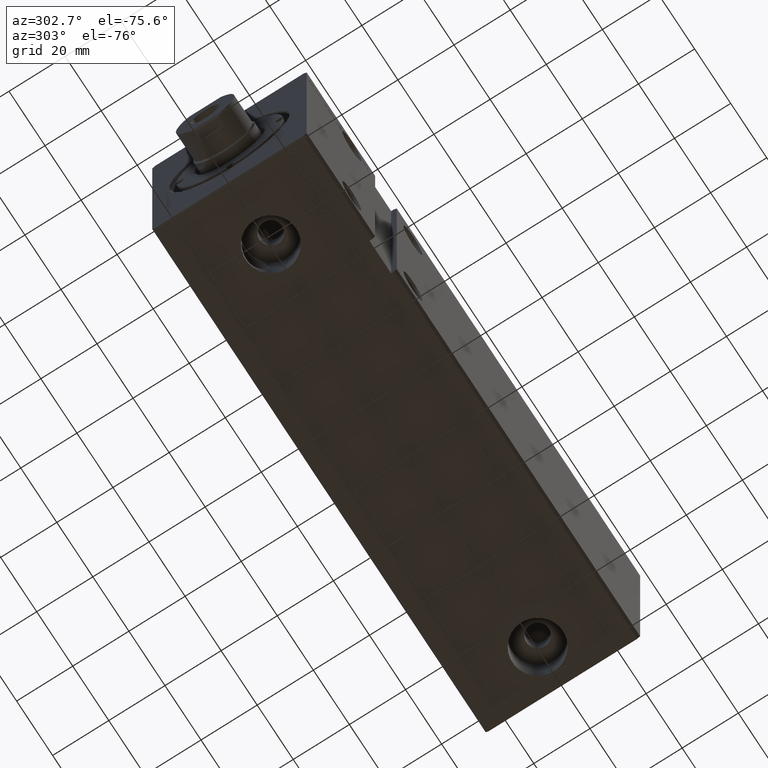
[diagram: clean part render]
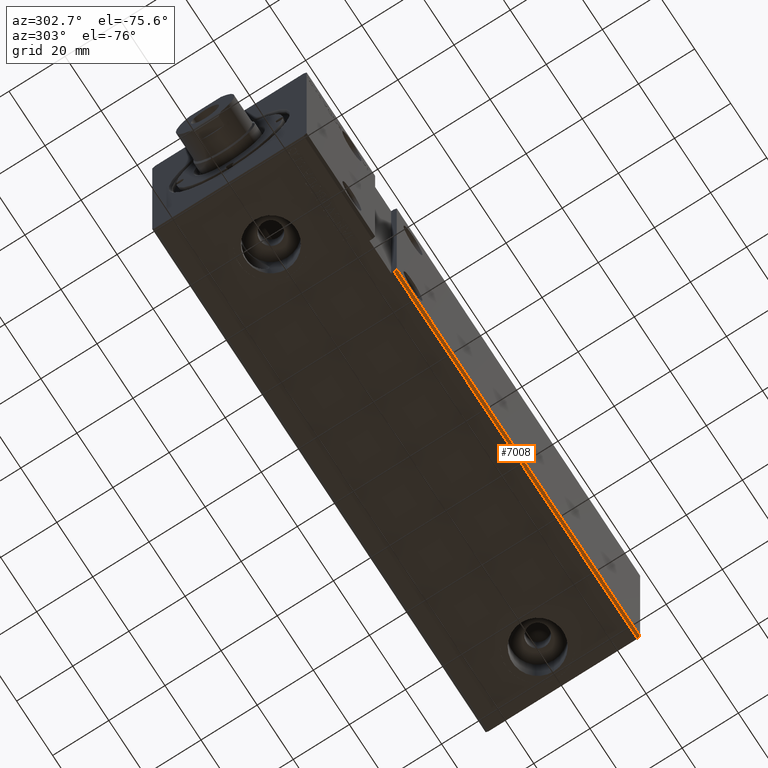
[diagram: same view with one face highlighted and labeled with its STEP entity id]
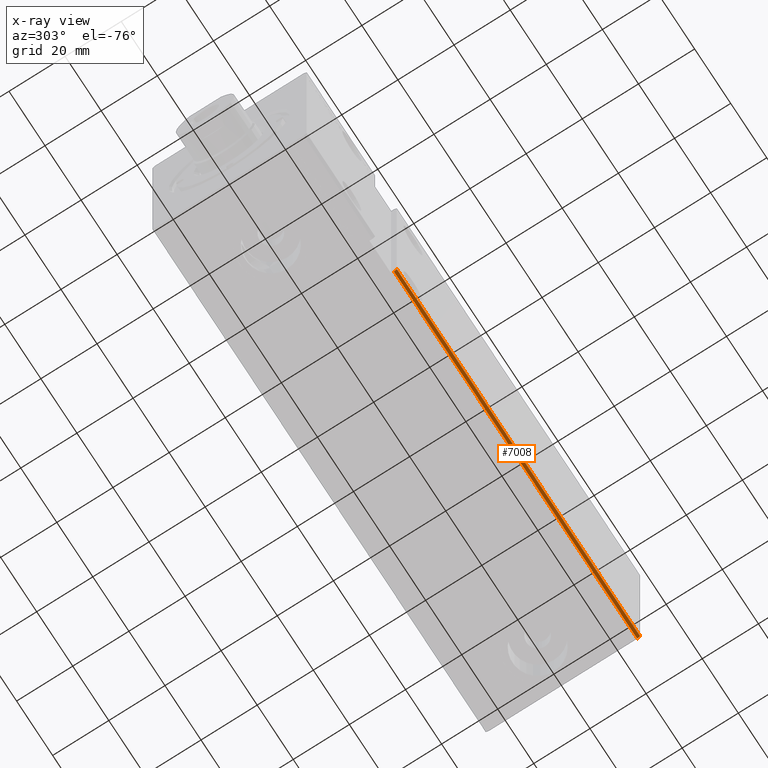
[diagram: x-ray of the same camera — body ghosted, the highlighted face saturated]
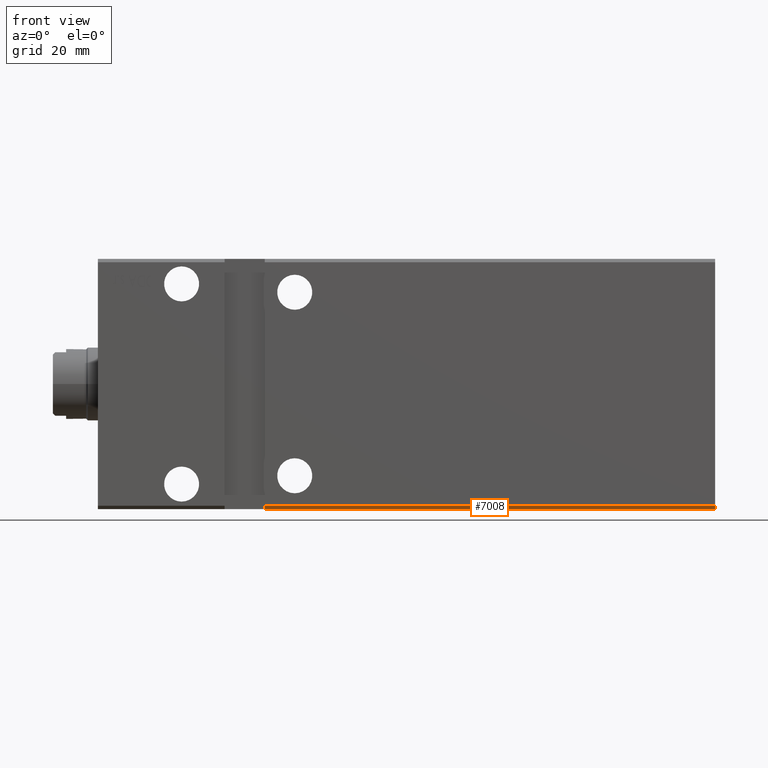
[diagram: same view with one face highlighted and labeled with its STEP entity id]
A machine part, auxiliary view. The second image highlights one B-rep face of the part: STEP entity #7008.
The next image is the same camera in x-ray: the body ghosted, the highlighted face saturated — about 0% of this face is hidden behind the body in this view.
A second angle (front view) of the same face is appended — the face is thin or edge-on in the first view.
In plain terms, the highlighted planar face has unit normal (0, 0.7071, 0.7071).
Its self-contained STEP definition (entity closure, byte-faithful):
#37 = DIRECTION ( 'NONE',  ( -1.000000000000000000, -0.000000000000000000, -0.000000000000000000 ) ) ;
#1109 = CARTESIAN_POINT ( 'NONE',  ( 50.00000000000000711, -26.50000000000000355, -37.49999999999999289 ) ) ;
#1166 = CARTESIAN_POINT ( 'NONE',  ( 185.0000000000000000, -27.50000000000000355, -36.49999999999998579 ) ) ;
#2642 = EDGE_CURVE ( 'NONE', #21054, #38340, #28165, .T. ) ;
#3468 = DIRECTION ( 'NONE',  ( 0.000000000000000000, -0.7071067811865451302, 0.7071067811865499042 ) ) ;
#5225 = CARTESIAN_POINT ( 'NONE',  ( 185.0000000000000000, -27.50000000000000355, -36.49999999999998579 ) ) ;
#5829 = LINE ( 'NONE', #15410, #28679 ) ;
#7008 = ADVANCED_FACE ( 'NONE', ( #30849 ), #22046, .F. ) ;
#7268 = ORIENTED_EDGE ( 'NONE', *, *, #15391, .F. ) ;
#7355 = DIRECTION ( 'NONE',  ( 1.308410382236483702E-16, 0.7071067811865451302, -0.7071067811865499042 ) ) ;
#9455 = EDGE_LOOP ( 'NONE', ( #15332, #26145, #34012, #7268 ) ) ;
#10910 = CARTESIAN_POINT ( 'NONE',  ( 185.0000000000000000, -27.50000000000000355, -36.49999999999998579 ) ) ;
#11118 = LINE ( 'NONE', #10910, #25899 ) ;
#12055 = EDGE_CURVE ( 'NONE', #19298, #38340, #5829, .T. ) ;
#13725 = VECTOR ( 'NONE', #7355, 1000.000000000000114 ) ;
#14337 = EDGE_CURVE ( 'NONE', #22219, #21054, #31355, .T. ) ;
#15332 = ORIENTED_EDGE ( 'NONE', *, *, #14337, .T. ) ;
#15391 = EDGE_CURVE ( 'NONE', #22219, #19298, #11118, .T. ) ;
#15410 = CARTESIAN_POINT ( 'NONE',  ( 185.0000000000000000, -26.50000000000000355, -37.49999999999999289 ) ) ;
#18456 = DIRECTION ( 'NONE',  ( -0.000000000000000000, 0.7071067811865499042, 0.7071067811865451302 ) ) ;
#19298 = VERTEX_POINT ( 'NONE', #38915 ) ;
#21054 = VERTEX_POINT ( 'NONE', #21786 ) ;
#21786 = CARTESIAN_POINT ( 'NONE',  ( 50.00000000000000711, -27.50000000000000000, -36.49999999999997868 ) ) ;
#22046 = PLANE ( 'NONE',  #28228 ) ;
#22219 = VERTEX_POINT ( 'NONE', #5225 ) ;
#22550 = CARTESIAN_POINT ( 'NONE',  ( 49.99999999999998579, -27.49999999999998934, -36.50000000000000000 ) ) ;
#25555 = DIRECTION ( 'NONE',  ( -1.000000000000000000, -0.000000000000000000, -0.000000000000000000 ) ) ;
#25899 = VECTOR ( 'NONE', #32318, 1000.000000000000114 ) ;
#26145 = ORIENTED_EDGE ( 'NONE', *, *, #2642, .T. ) ;
#28165 = LINE ( 'NONE', #22550, #13725 ) ;
#28228 = AXIS2_PLACEMENT_3D ( 'NONE', #36825, #18456, #3468 ) ;
#28679 = VECTOR ( 'NONE', #37, 1000.000000000000000 ) ;
#30849 = FACE_OUTER_BOUND ( 'NONE', #9455, .T. ) ;
#31355 = LINE ( 'NONE', #1166, #37182 ) ;
#32318 = DIRECTION ( 'NONE',  ( 0.000000000000000000, 0.7071067811865451302, -0.7071067811865500152 ) ) ;
#34012 = ORIENTED_EDGE ( 'NONE', *, *, #12055, .F. ) ;
#36825 = CARTESIAN_POINT ( 'NONE',  ( 185.0000000000000000, -27.50000000000000355, -36.49999999999998579 ) ) ;
#37182 = VECTOR ( 'NONE', #25555, 1000.000000000000000 ) ;
#38340 = VERTEX_POINT ( 'NONE', #1109 ) ;
#38915 = CARTESIAN_POINT ( 'NONE',  ( 185.0000000000000000, -26.50000000000000355, -37.49999999999999289 ) ) ;